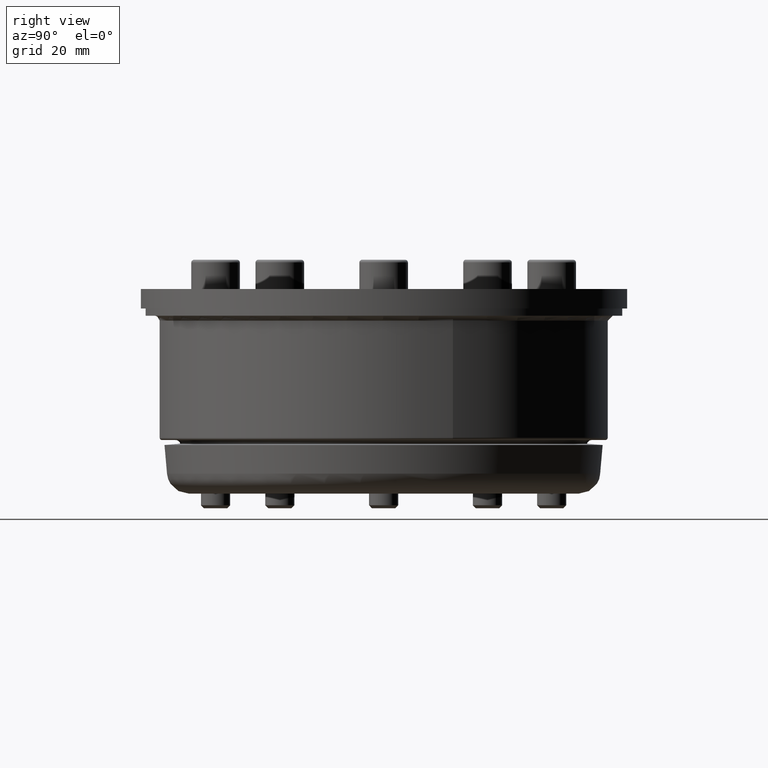
[diagram: clean part render]
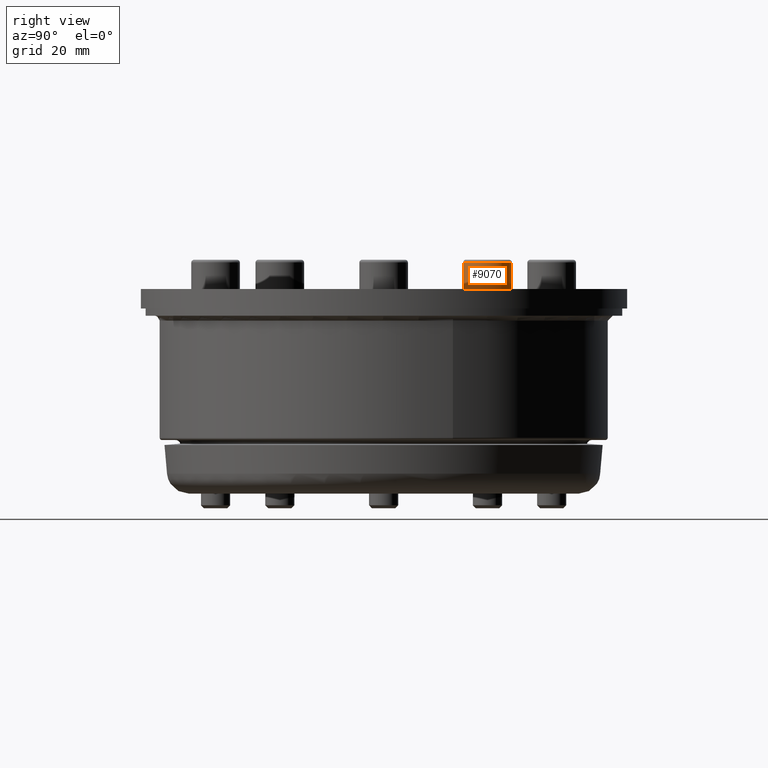
[diagram: same view with one face highlighted and labeled with its STEP entity id]
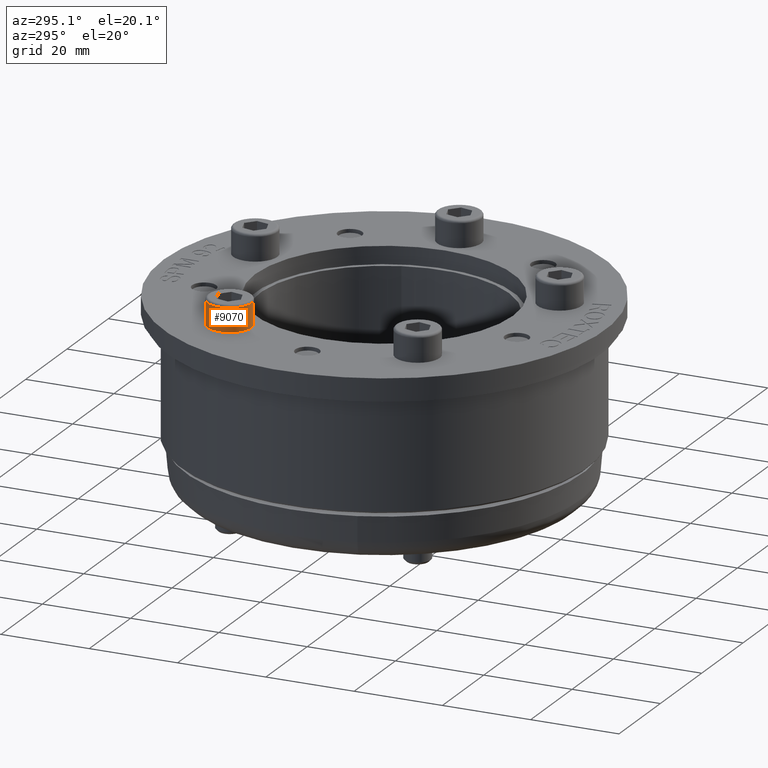
[diagram: same view with one face highlighted and labeled with its STEP entity id]
A machine part, right view. The second image highlights one B-rep face of the part: STEP entity #9070.
A second angle (auxiliary view) of the same face is appended — the face is thin or edge-on in the first view.
In plain terms, the highlighted cylindrical surface (bore or boss wall) has radius 5 mm, axis along (-0, 0, -1).
Its self-contained STEP definition (entity closure, byte-faithful):
#8928=CARTESIAN_POINT('',(2.220446E-015,5.000000000000002,0.0));
#8929=VERTEX_POINT('',#8928);
#8930=CARTESIAN_POINT('',(0.0,-1.170057E-016,0.0));
#8931=DIRECTION('',(1.0,0.0,0.0));
#8932=DIRECTION('',(0.0,1.0,0.0));
#8933=AXIS2_PLACEMENT_3D('',#8930,#8931,#8932);
#8934=CIRCLE('',#8933,5.000000000000002);
#8935=EDGE_CURVE('',#8929,#8929,#8934,.T.);
#8988=CARTESIAN_POINT('',(-5.399999999999996,5.000000000000002,-1.224606E-015));
#8989=VERTEX_POINT('',#8988);
#8990=CARTESIAN_POINT('',(-5.399999999999996,-1.310463E-016,0.0));
#8991=DIRECTION('',(-1.0,0.0,0.0));
#8992=DIRECTION('',(0.0,-1.0,0.0));
#8993=AXIS2_PLACEMENT_3D('',#8990,#8991,#8992);
#8994=CIRCLE('',#8993,5.000000000000002);
#8995=EDGE_CURVE('',#8989,#8989,#8994,.T.);
#9059=CARTESIAN_POINT('',(-2.999999999999998,-1.248060E-016,0.0));
#9060=DIRECTION('',(1.0,2.600126E-018,0.0));
#9061=DIRECTION('',(0.0,1.0,0.0));
#9062=AXIS2_PLACEMENT_3D('',#9059,#9060,#9061);
#9063=CYLINDRICAL_SURFACE('',#9062,5.000000000000002);
#9064=ORIENTED_EDGE('',*,*,#8935,.F.);
#9065=EDGE_LOOP('',(#9064));
#9066=FACE_OUTER_BOUND('',#9065,.T.);
#9067=ORIENTED_EDGE('',*,*,#8995,.F.);
#9068=EDGE_LOOP('',(#9067));
#9069=FACE_BOUND('',#9068,.T.);
#9070=ADVANCED_FACE('',(#9066,#9069),#9063,.T.);